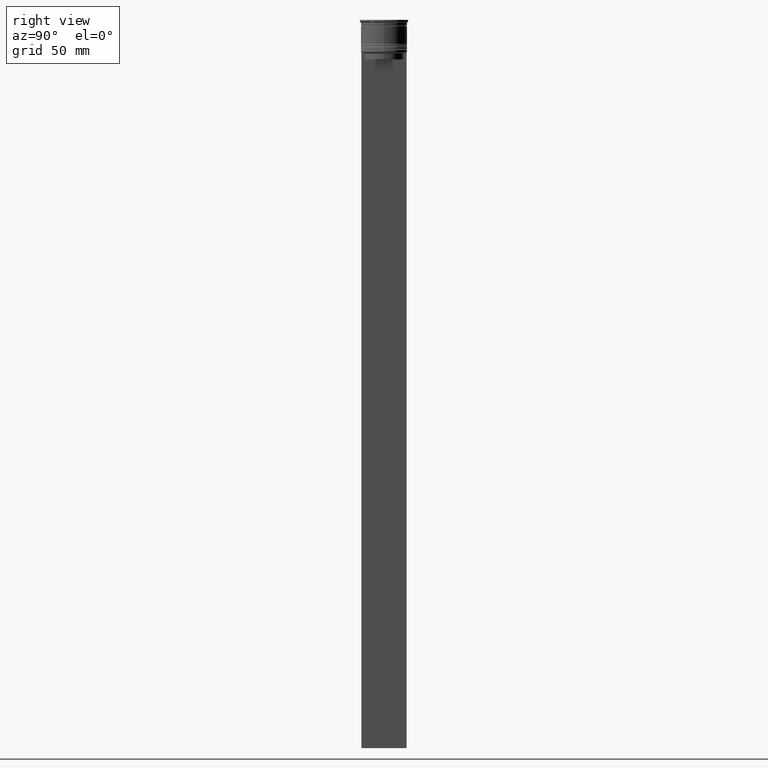
[diagram: clean part render]
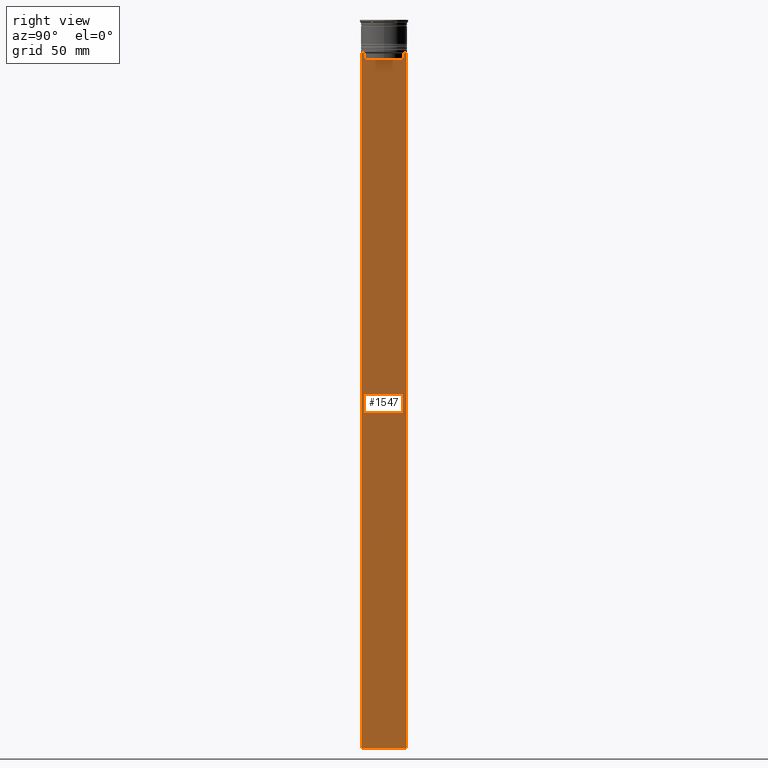
[diagram: same view with one face highlighted and labeled with its STEP entity id]
A machine part, right view. The second image highlights one B-rep face of the part: STEP entity #1547.
In plain terms, the highlighted planar face has unit normal (-1, 0, 0).
Its self-contained STEP definition (entity closure, byte-faithful):
#1 = CARTESIAN_POINT ( 'NONE',  ( 0.4999999999999998890, 8.400000000000003908, -17.00000000000000000 ) ) ;
#37 = B_SPLINE_CURVE_WITH_KNOTS ( 'NONE', 3,
 ( #2511, #904, #1298, #689 ),
 .UNSPECIFIED., .F., .F.,
 ( 4, 4 ),
 ( 0.03898465126933130243, 0.03969388910599658260 ),
 .UNSPECIFIED. ) ;
#49 = EDGE_CURVE ( 'NONE', #1278, #2266, #998, .T. ) ;
#70 = VERTEX_POINT ( 'NONE', #2192 ) ;
#106 = VERTEX_POINT ( 'NONE', #2204 ) ;
#123 = DIRECTION ( 'NONE',  ( 0.000000000000000000, 0.000000000000000000, -1.000000000000000000 ) ) ;
#135 = EDGE_CURVE ( 'NONE', #2107, #70, #1448, .T. ) ;
#190 = EDGE_CURVE ( 'NONE', #281, #2107, #901, .T. ) ;
#204 = CARTESIAN_POINT ( 'NONE',  ( 0.4999999999999998890, 8.385105843100616241, 0.000000000000000000 ) ) ;
#225 = VECTOR ( 'NONE', #2455, 1000.000000000000000 ) ;
#281 = VERTEX_POINT ( 'NONE', #757 ) ;
#311 = VECTOR ( 'NONE', #2022, 1000.000000000000000 ) ;
#323 = VERTEX_POINT ( 'NONE', #526 ) ;
#408 = ORIENTED_EDGE ( 'NONE', *, *, #1299, .T. ) ;
#439 = ORIENTED_EDGE ( 'NONE', *, *, #958, .F. ) ;
#502 = EDGE_CURVE ( 'NONE', #106, #1278, #1034, .T. ) ;
#503 = CARTESIAN_POINT ( 'NONE',  ( 0.4999999999999998890, -9.749999999999998224, -14.00000000000000178 ) ) ;
#512 = DIRECTION ( 'NONE',  ( -1.000000000000000000, 0.000000000000000000, 0.000000000000000000 ) ) ;
#526 = CARTESIAN_POINT ( 'NONE',  ( 0.4999999999999998890, 9.750000000000001776, -314.0000000000000000 ) ) ;
#527 = PLANE ( 'NONE',  #534 ) ;
#532 = VERTEX_POINT ( 'NONE', #2003 ) ;
#534 = AXIS2_PLACEMENT_3D ( 'NONE', #1321, #512, #1308 ) ;
#542 = LINE ( 'NONE', #1335, #778 ) ;
#558 = ORIENTED_EDGE ( 'NONE', *, *, #1908, .T. ) ;
#583 = CARTESIAN_POINT ( 'NONE',  ( 0.4999999999999998890, 8.885943956609230199, -14.00000000000000178 ) ) ;
#617 = DIRECTION ( 'NONE',  ( 0.000000000000000000, 0.000000000000000000, -1.000000000000000000 ) ) ;
#689 = CARTESIAN_POINT ( 'NONE',  ( 0.4999999999999998890, -8.885943956609230199, -14.00000000000000178 ) ) ;
#736 = ORIENTED_EDGE ( 'NONE', *, *, #49, .T. ) ;
#757 = CARTESIAN_POINT ( 'NONE',  ( 0.4999999999999998890, -8.885943956609230199, -14.00000000000000178 ) ) ;
#778 = VECTOR ( 'NONE', #2124, 1000.000000000000000 ) ;
#817 = DIRECTION ( 'NONE',  ( 0.000000000000000000, 0.000000000000000000, -1.000000000000000000 ) ) ;
#858 = CARTESIAN_POINT ( 'NONE',  ( 0.4999999999999998890, -8.385105843100616241, 0.000000000000000000 ) ) ;
#865 = EDGE_CURVE ( 'NONE', #1361, #106, #2241, .T. ) ;
#901 = LINE ( 'NONE', #503, #225 ) ;
#904 = CARTESIAN_POINT ( 'NONE',  ( 0.4999999999999998890, -8.552060194457768105, -14.33334167772667556 ) ) ;
#909 = DIRECTION ( 'NONE',  ( 0.000000000000000000, 1.000000000000000000, 0.000000000000000000 ) ) ;
#947 = CARTESIAN_POINT ( 'NONE',  ( 0.4999999999999998890, 8.719005771582347464, -14.16667453442325453 ) ) ;
#958 = EDGE_CURVE ( 'NONE', #2569, #323, #2207, .T. ) ;
#998 = LINE ( 'NONE', #1, #311 ) ;
#1028 = EDGE_CURVE ( 'NONE', #532, #281, #37, .T. ) ;
#1034 = LINE ( 'NONE', #204, #2263 ) ;
#1097 = CARTESIAN_POINT ( 'NONE',  ( 0.4999999999999998890, -8.385105843100616241, -17.00000000000000000 ) ) ;
#1276 = ORIENTED_EDGE ( 'NONE', *, *, #2340, .T. ) ;
#1278 = VERTEX_POINT ( 'NONE', #1971 ) ;
#1298 = CARTESIAN_POINT ( 'NONE',  ( 0.4999999999999998890, -8.719005764482787413, -14.16667454151160044 ) ) ;
#1299 = EDGE_CURVE ( 'NONE', #2569, #1361, #542, .T. ) ;
#1308 = DIRECTION ( 'NONE',  ( 0.000000000000000000, 0.000000000000000000, 1.000000000000000000 ) ) ;
#1310 = ORIENTED_EDGE ( 'NONE', *, *, #1028, .T. ) ;
#1321 = CARTESIAN_POINT ( 'NONE',  ( 0.4999999999999998890, -9.749999999999998224, 5.525624189766635830 ) ) ;
#1335 = CARTESIAN_POINT ( 'NONE',  ( 0.4999999999999998890, -9.749999999999998224, -14.00000000000000178 ) ) ;
#1361 = VERTEX_POINT ( 'NONE', #1438 ) ;
#1366 = ORIENTED_EDGE ( 'NONE', *, *, #865, .T. ) ;
#1381 = EDGE_LOOP ( 'NONE', ( #408, #1366, #1414, #736, #1276, #1310, #1701, #1766, #558, #439 ) ) ;
#1414 = ORIENTED_EDGE ( 'NONE', *, *, #502, .T. ) ;
#1438 = CARTESIAN_POINT ( 'NONE',  ( 0.4999999999999998890, 8.885943956609230199, -14.00000000000000178 ) ) ;
#1448 = LINE ( 'NONE', #2242, #1674 ) ;
#1455 = LINE ( 'NONE', #858, #1718 ) ;
#1471 = CARTESIAN_POINT ( 'NONE',  ( 0.4999999999999998890, -9.749999999999998224, -314.0000000000000000 ) ) ;
#1503 = VECTOR ( 'NONE', #909, 1000.000000000000000 ) ;
#1547 = ADVANCED_FACE ( 'NONE', ( #1852 ), #527, .F. ) ;
#1610 = CARTESIAN_POINT ( 'NONE',  ( 0.4999999999999998890, 9.750000000000001776, 5.525624189766635830 ) ) ;
#1674 = VECTOR ( 'NONE', #123, 1000.000000000000000 ) ;
#1701 = ORIENTED_EDGE ( 'NONE', *, *, #190, .T. ) ;
#1718 = VECTOR ( 'NONE', #2461, 1000.000000000000000 ) ;
#1766 = ORIENTED_EDGE ( 'NONE', *, *, #135, .T. ) ;
#1777 = CARTESIAN_POINT ( 'NONE',  ( 0.4999999999999998890, 8.552060201981378285, -14.33334167021640582 ) ) ;
#1852 = FACE_OUTER_BOUND ( 'NONE', #1381, .T. ) ;
#1908 = EDGE_CURVE ( 'NONE', #70, #323, #2240, .T. ) ;
#1971 = CARTESIAN_POINT ( 'NONE',  ( 0.4999999999999998890, 8.385105843100616241, -17.00000000000000000 ) ) ;
#1974 = CARTESIAN_POINT ( 'NONE',  ( 0.4999999999999998890, 8.385105843100616241, -14.50000000000000000 ) ) ;
#1975 = CARTESIAN_POINT ( 'NONE',  ( 0.4999999999999998890, 9.750000000000001776, -14.00000000000000178 ) ) ;
#2003 = CARTESIAN_POINT ( 'NONE',  ( 0.4999999999999998890, -8.385105843100616241, -14.50000000000000000 ) ) ;
#2022 = DIRECTION ( 'NONE',  ( 0.000000000000000000, -1.000000000000000000, 0.000000000000000000 ) ) ;
#2107 = VERTEX_POINT ( 'NONE', #2325 ) ;
#2124 = DIRECTION ( 'NONE',  ( 0.000000000000000000, -1.000000000000000000, 0.000000000000000000 ) ) ;
#2192 = CARTESIAN_POINT ( 'NONE',  ( 0.4999999999999998890, -9.749999999999998224, -314.0000000000000000 ) ) ;
#2204 = CARTESIAN_POINT ( 'NONE',  ( 0.4999999999999998890, 8.385105843100616241, -14.50000000000000000 ) ) ;
#2207 = LINE ( 'NONE', #1610, #2250 ) ;
#2240 = LINE ( 'NONE', #1471, #1503 ) ;
#2241 = B_SPLINE_CURVE_WITH_KNOTS ( 'NONE', 3,
 ( #583, #947, #1777, #1974 ),
 .UNSPECIFIED., .F., .F.,
 ( 4, 4 ),
 ( 0.01511546479386908018, 0.01582316445439079997 ),
 .UNSPECIFIED. ) ;
#2242 = CARTESIAN_POINT ( 'NONE',  ( 0.4999999999999998890, -9.749999999999998224, 5.525624189766635830 ) ) ;
#2250 = VECTOR ( 'NONE', #817, 1000.000000000000000 ) ;
#2263 = VECTOR ( 'NONE', #617, 1000.000000000000000 ) ;
#2266 = VERTEX_POINT ( 'NONE', #1097 ) ;
#2325 = CARTESIAN_POINT ( 'NONE',  ( 0.4999999999999998890, -9.749999999999998224, -14.00000000000000178 ) ) ;
#2340 = EDGE_CURVE ( 'NONE', #2266, #532, #1455, .T. ) ;
#2455 = DIRECTION ( 'NONE',  ( 0.000000000000000000, -1.000000000000000000, 0.000000000000000000 ) ) ;
#2461 = DIRECTION ( 'NONE',  ( -0.000000000000000000, -0.000000000000000000, 1.000000000000000000 ) ) ;
#2511 = CARTESIAN_POINT ( 'NONE',  ( 0.4999999999999998890, -8.385105843100616241, -14.50000000000000000 ) ) ;
#2569 = VERTEX_POINT ( 'NONE', #1975 ) ;